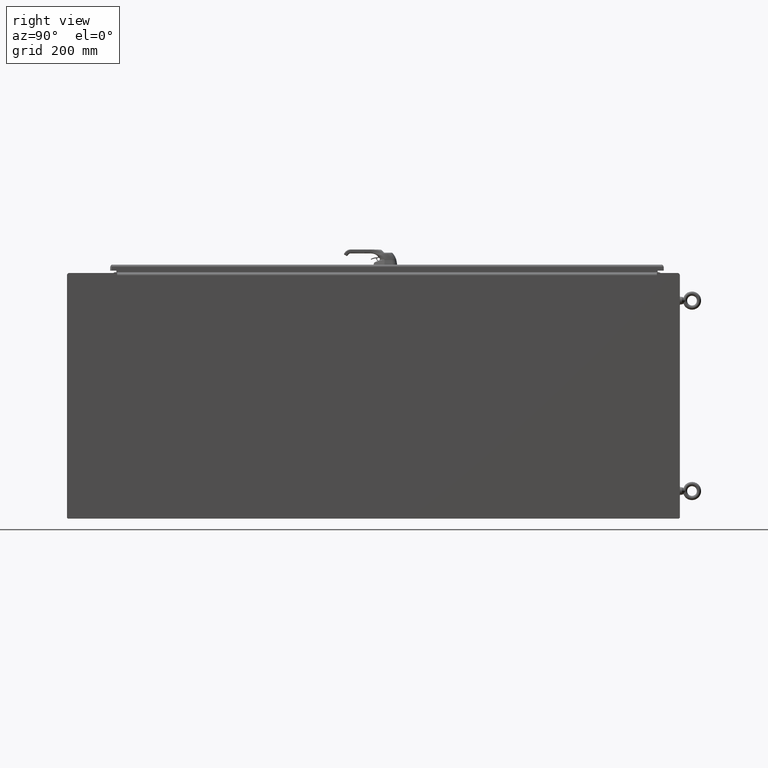
[diagram: clean part render]
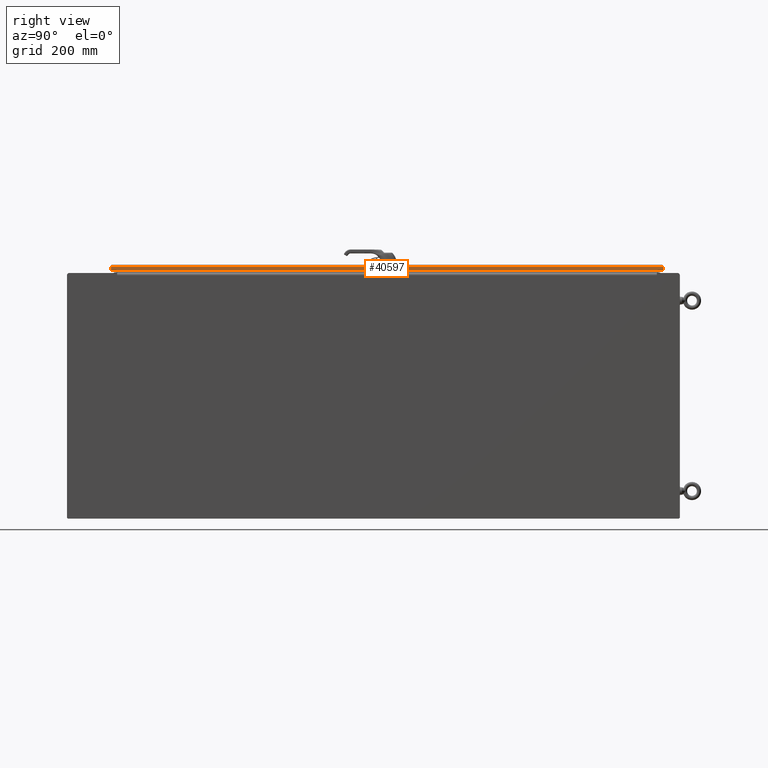
[diagram: same view with one face highlighted and labeled with its STEP entity id]
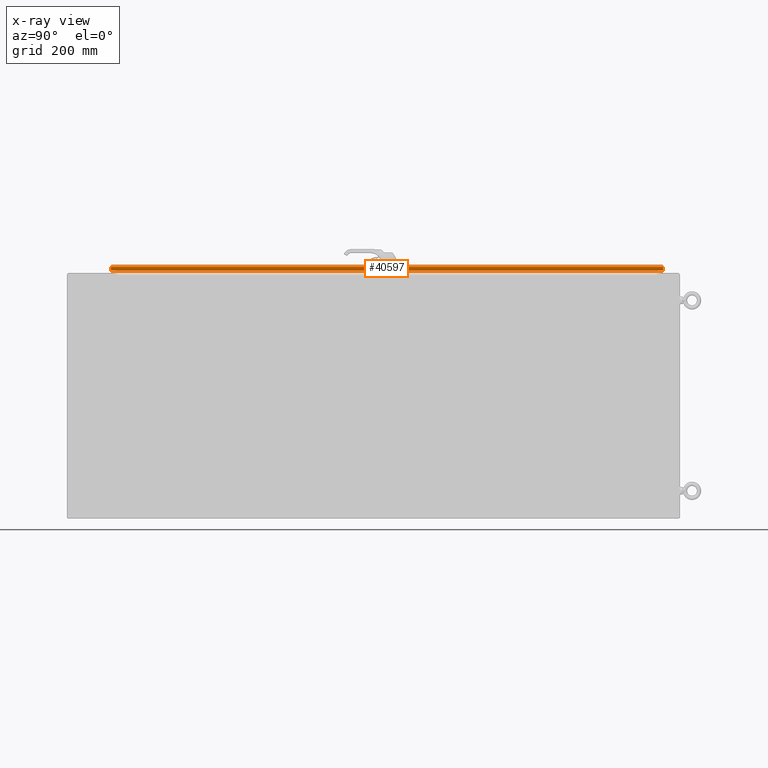
[diagram: x-ray of the same camera — body ghosted, the highlighted face saturated]
A machine part, right view. The second image highlights one B-rep face of the part: STEP entity #40597.
The next image is the same camera in x-ray: the body ghosted, the highlighted face saturated — about 0% of this face is hidden behind the body in this view.
In plain terms, the highlighted planar face has unit normal (1, 0, -0).
Its self-contained STEP definition (entity closure, byte-faithful):
#5732=FACE_OUTER_BOUND('',#8270,.T.);
#8270=EDGE_LOOP('',(#27713,#27714,#27715,#27716));
#11168=LINE('',#63261,#14123);
#11174=LINE('',#63287,#14129);
#11177=LINE('',#63346,#14132);
#11179=LINE('',#63349,#14134);
#14123=VECTOR('',#49974,0.393700787401575);
#14129=VECTOR('',#49984,0.393700787401575);
#14132=VECTOR('',#49989,0.393700787401575);
#14134=VECTOR('',#49993,0.393700787401575);
#16946=VERTEX_POINT('',#63133);
#16951=VERTEX_POINT('',#63260);
#16955=VERTEX_POINT('',#63286);
#16956=VERTEX_POINT('',#63345);
#20967=EDGE_CURVE('',#16946,#16951,#11168,.T.);
#20975=EDGE_CURVE('',#16955,#16951,#11174,.T.);
#20979=EDGE_CURVE('',#16946,#16956,#11177,.T.);
#20981=EDGE_CURVE('',#16956,#16955,#11179,.T.);
#27713=ORIENTED_EDGE('',*,*,#20967,.T.);
#27714=ORIENTED_EDGE('',*,*,#20975,.F.);
#27715=ORIENTED_EDGE('',*,*,#20981,.F.);
#27716=ORIENTED_EDGE('',*,*,#20979,.F.);
#38908=PLANE('',#44182);
#40597=ADVANCED_FACE('',(#5732),#38908,.T.);
#44182=AXIS2_PLACEMENT_3D('',#63350,#49994,#49995);
#49974=DIRECTION('',(1.58670998541504E-16,-1.,-9.52590257484208E-32));
#49984=DIRECTION('',(1.71512449944288E-15,1.72563323017096E-31,1.));
#49989=DIRECTION('',(-1.71512449944288E-15,-1.72563323017096E-31,-1.));
#49993=DIRECTION('',(1.7207897501365E-16,-1.,-2.92439892622029E-19));
#49994=DIRECTION('center_axis',(1.,1.58670998541504E-16,-1.71258295750742E-15));
#49995=DIRECTION('ref_axis',(-1.71258295750742E-15,-1.03130409051141E-16,
-1.));
#63133=CARTESIAN_POINT('',(17.71875,40.572451456544,-0.249999999999996));
#63260=CARTESIAN_POINT('',(17.71875,-40.5724514565439,-0.249999999999996));
#63261=CARTESIAN_POINT('',(17.71875,4.93597661621485E-16,-0.249999999999999));
#63286=CARTESIAN_POINT('',(17.71875,-40.572451456544,-0.771));
#63287=CARTESIAN_POINT('',(17.71875,-40.572451456544,-0.249999999999999));
#63345=CARTESIAN_POINT('',(17.71875,40.572451456544,-0.770999999999997));
#63346=CARTESIAN_POINT('',(17.71875,40.572451456544,-0.249999999999996));
#63349=CARTESIAN_POINT('',(17.71875,40.572451456544,-0.770999999999997));
#63350=CARTESIAN_POINT('Origin',(17.71875,9.47336950080808E-16,-0.281091395943071));